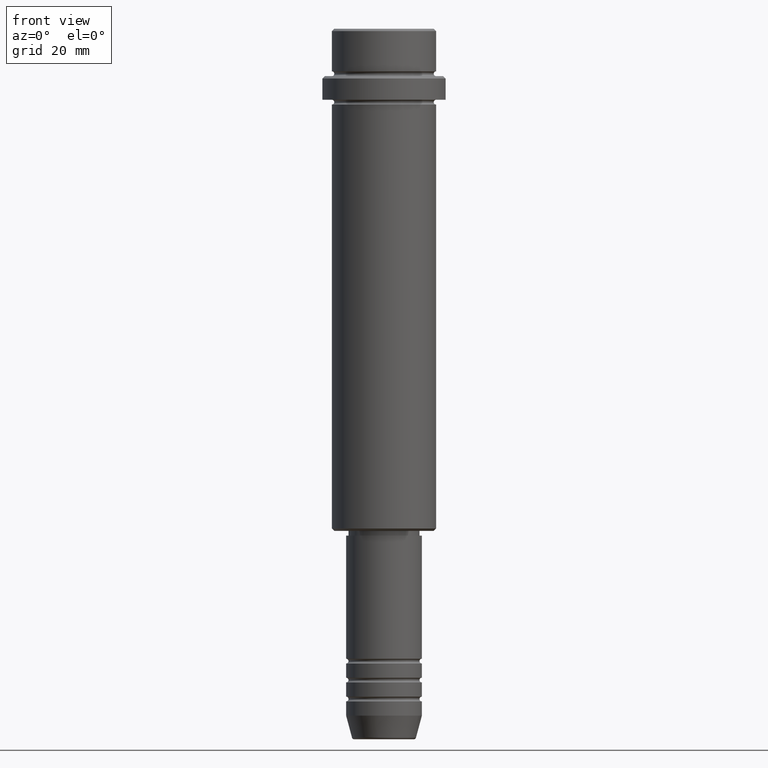
[diagram: clean part render]
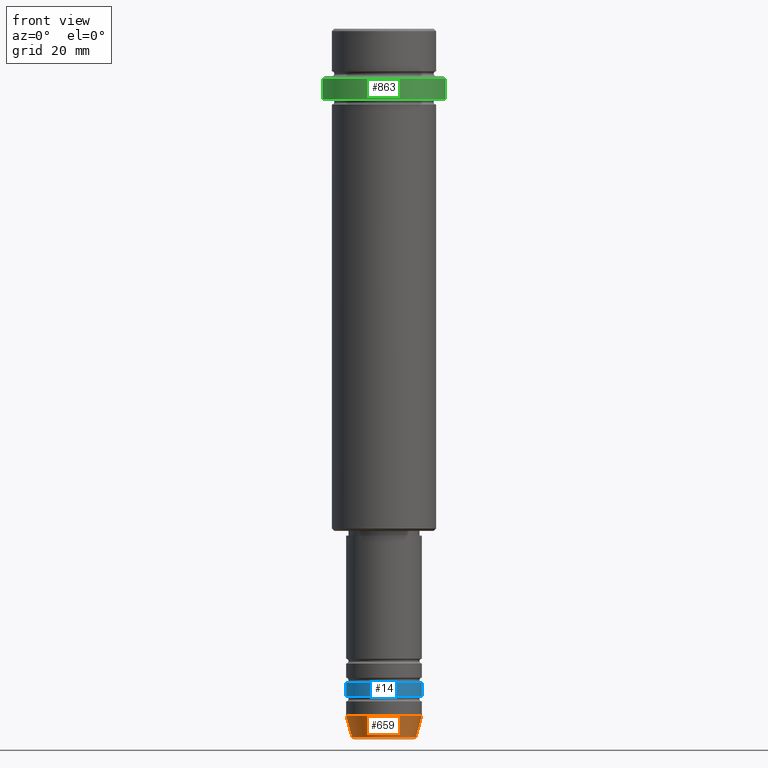
[diagram: same view with three faces highlighted in distinct colors, each labeled with its STEP entity id]
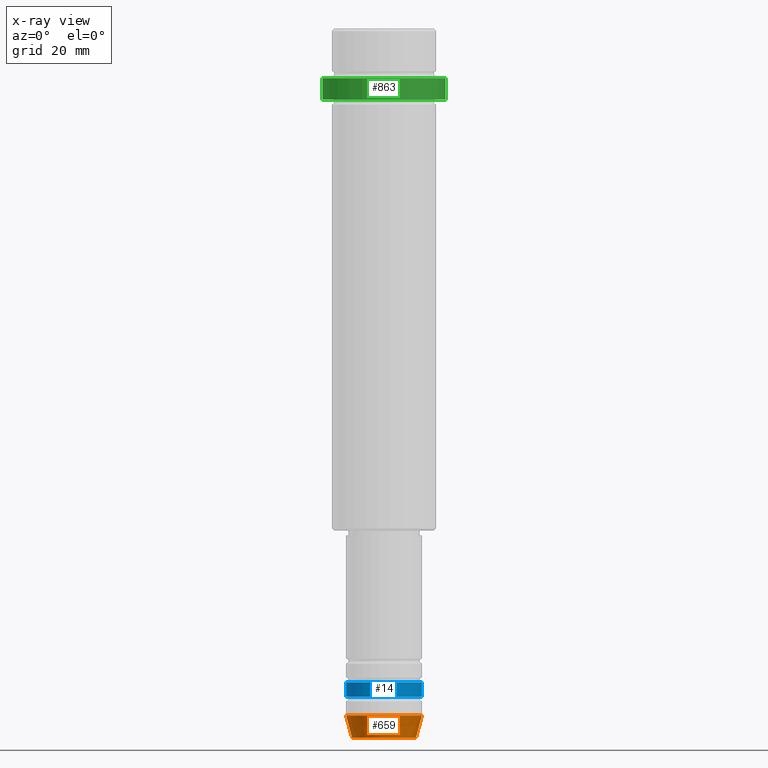
[diagram: x-ray of the same camera — body ghosted, the three highlighted faces saturated]
A machine part, front view with three faces highlighted in distinct colors.
The next image is the same camera in x-ray (body ghosted, the three faces saturated) — at least one of them is partly hidden behind the body in this view.
Their STEP definitions:

[orange] entity #659 — the highlighted conical surface has half-angle 15 deg.
#2 = CARTESIAN_POINT ( 'NONE',  ( 6.759553456999433330, 0.000000000000000000, -149.6294095225512706 ) ) ;
#33 = CARTESIAN_POINT ( 'NONE',  ( 8.000000000000000000, 0.000000000000000000, -145.0000000000000284 ) ) ;
#34 = EDGE_CURVE ( 'NONE', #1144, #665, #1338, .T. ) ;
#46 = CONICAL_SURFACE ( 'NONE', #435, 8.000000000000000000, 0.2617993877991500740 ) ;
#52 = DIRECTION ( 'NONE',  ( -0.000000000000000000, -0.000000000000000000, 1.000000000000000000 ) ) ;
#59 = EDGE_CURVE ( 'NONE', #490, #152, #291, .T. ) ;
#70 = CARTESIAN_POINT ( 'NONE',  ( 0.000000000000000000, 0.000000000000000000, -149.6294095225512706 ) ) ;
#110 = ORIENTED_EDGE ( 'NONE', *, *, #59, .T. ) ;
#137 = FACE_OUTER_BOUND ( 'NONE', #368, .T. ) ;
#152 = VERTEX_POINT ( 'NONE', #2 ) ;
#154 = AXIS2_PLACEMENT_3D ( 'NONE', #70, #930, #800 ) ;
#200 = VECTOR ( 'NONE', #1218, 1000.000000000000000 ) ;
#263 = DIRECTION ( 'NONE',  ( 1.000000000000000000, 0.000000000000000000, 0.000000000000000000 ) ) ;
#291 = CIRCLE ( 'NONE', #154, 6.759553456999433330 ) ;
#295 = CARTESIAN_POINT ( 'NONE',  ( -8.000000000000000000, 9.797174393178825657E-16, -145.0000000000000284 ) ) ;
#368 = EDGE_LOOP ( 'NONE', ( #1075, #110, #537, #427 ) ) ;
#378 = DIRECTION ( 'NONE',  ( 1.000000000000000000, 0.000000000000000000, 0.000000000000000000 ) ) ;
#388 = AXIS2_PLACEMENT_3D ( 'NONE', #1370, #1260, #378 ) ;
#427 = ORIENTED_EDGE ( 'NONE', *, *, #34, .F. ) ;
#435 = AXIS2_PLACEMENT_3D ( 'NONE', #1227, #52, #263 ) ;
#469 = LINE ( 'NONE', #767, #827 ) ;
#490 = VERTEX_POINT ( 'NONE', #1184 ) ;
#537 = ORIENTED_EDGE ( 'NONE', *, *, #1386, .T. ) ;
#659 = ADVANCED_FACE ( 'NONE', ( #137 ), #46, .T. ) ;
#665 = VERTEX_POINT ( 'NONE', #1373 ) ;
#767 = CARTESIAN_POINT ( 'NONE',  ( -8.000000000000000000, 9.797174393178825657E-16, -145.0000000000000284 ) ) ;
#776 = LINE ( 'NONE', #33, #200 ) ;
#800 = DIRECTION ( 'NONE',  ( 1.000000000000000000, 0.000000000000000000, 0.000000000000000000 ) ) ;
#827 = VECTOR ( 'NONE', #1210, 1000.000000000000000 ) ;
#930 = DIRECTION ( 'NONE',  ( -0.000000000000000000, -0.000000000000000000, 1.000000000000000000 ) ) ;
#969 = EDGE_CURVE ( 'NONE', #490, #1144, #469, .T. ) ;
#1075 = ORIENTED_EDGE ( 'NONE', *, *, #969, .F. ) ;
#1144 = VERTEX_POINT ( 'NONE', #295 ) ;
#1184 = CARTESIAN_POINT ( 'NONE',  ( -6.759553456999433330, 9.037619948979304241E-16, -149.6294095225512706 ) ) ;
#1210 = DIRECTION ( 'NONE',  ( -0.2588190451025213501, 3.169619151431772337E-17, 0.9659258262890680902 ) ) ;
#1218 = DIRECTION ( 'NONE',  ( 0.2588190451025213501, 0.000000000000000000, 0.9659258262890680902 ) ) ;
#1227 = CARTESIAN_POINT ( 'NONE',  ( 0.000000000000000000, 0.000000000000000000, -145.0000000000000284 ) ) ;
#1260 = DIRECTION ( 'NONE',  ( -0.000000000000000000, -0.000000000000000000, 1.000000000000000000 ) ) ;
#1338 = CIRCLE ( 'NONE', #388, 8.000000000000000000 ) ;
#1370 = CARTESIAN_POINT ( 'NONE',  ( 0.000000000000000000, 0.000000000000000000, -145.0000000000000284 ) ) ;
#1373 = CARTESIAN_POINT ( 'NONE',  ( 8.000000000000000000, 0.000000000000000000, -145.0000000000000284 ) ) ;
#1386 = EDGE_CURVE ( 'NONE', #152, #665, #776, .T. ) ;

[blue] entity #14 — the highlighted cylindrical surface (partial cylindrical patch) has radius 8 mm, axis along (-0, -0, 1).
#4 = DIRECTION ( 'NONE',  ( 1.000000000000000000, 0.000000000000000000, 0.000000000000000000 ) ) ;
#14 = ADVANCED_FACE ( 'NONE', ( #509 ), #1023, .T. ) ;
#27 = EDGE_LOOP ( 'NONE', ( #232, #386, #1138, #1348 ) ) ;
#60 = CARTESIAN_POINT ( 'NONE',  ( 0.000000000000000000, 0.000000000000000000, -137.9999999999998863 ) ) ;
#74 = DIRECTION ( 'NONE',  ( -0.000000000000000000, -0.000000000000000000, 1.000000000000000000 ) ) ;
#83 = EDGE_CURVE ( 'NONE', #558, #448, #826, .T. ) ;
#131 = VECTOR ( 'NONE', #832, 1000.000000000000000 ) ;
#232 = ORIENTED_EDGE ( 'NONE', *, *, #83, .F. ) ;
#265 = DIRECTION ( 'NONE',  ( -0.000000000000000000, -0.000000000000000000, 1.000000000000000000 ) ) ;
#313 = DIRECTION ( 'NONE',  ( -0.000000000000000000, -0.000000000000000000, 1.000000000000000000 ) ) ;
#386 = ORIENTED_EDGE ( 'NONE', *, *, #786, .T. ) ;
#448 = VERTEX_POINT ( 'NONE', #845 ) ;
#461 = CARTESIAN_POINT ( 'NONE',  ( 8.000000000000000000, 0.000000000000000000, -140.9999999999999147 ) ) ;
#500 = LINE ( 'NONE', #1377, #131 ) ;
#501 = CIRCLE ( 'NONE', #1136, 8.000000000000000000 ) ;
#509 = FACE_OUTER_BOUND ( 'NONE', #27, .T. ) ;
#542 = CIRCLE ( 'NONE', #1247, 8.000000000000000000 ) ;
#558 = VERTEX_POINT ( 'NONE', #991 ) ;
#588 = CARTESIAN_POINT ( 'NONE',  ( -8.000000000000000000, 9.797174393178825657E-16, 0.000000000000000000 ) ) ;
#610 = CARTESIAN_POINT ( 'NONE',  ( 0.000000000000000000, 0.000000000000000000, 0.000000000000000000 ) ) ;
#712 = DIRECTION ( 'NONE',  ( -0.000000000000000000, -0.000000000000000000, 1.000000000000000000 ) ) ;
#736 = CARTESIAN_POINT ( 'NONE',  ( 0.000000000000000000, 0.000000000000000000, -140.9999999999999147 ) ) ;
#786 = EDGE_CURVE ( 'NONE', #558, #1400, #501, .T. ) ;
#826 = LINE ( 'NONE', #588, #1109 ) ;
#832 = DIRECTION ( 'NONE',  ( -0.000000000000000000, -0.000000000000000000, 1.000000000000000000 ) ) ;
#845 = CARTESIAN_POINT ( 'NONE',  ( -8.000000000000000000, 9.797174393178825657E-16, -137.9999999999998863 ) ) ;
#875 = AXIS2_PLACEMENT_3D ( 'NONE', #610, #74, #907 ) ;
#907 = DIRECTION ( 'NONE',  ( 1.000000000000000000, 0.000000000000000000, 0.000000000000000000 ) ) ;
#917 = DIRECTION ( 'NONE',  ( 1.000000000000000000, 0.000000000000000000, 0.000000000000000000 ) ) ;
#991 = CARTESIAN_POINT ( 'NONE',  ( -8.000000000000000000, 9.797174393178825657E-16, -140.9999999999999147 ) ) ;
#1023 = CYLINDRICAL_SURFACE ( 'NONE', #875, 8.000000000000000000 ) ;
#1109 = VECTOR ( 'NONE', #265, 1000.000000000000000 ) ;
#1112 = EDGE_CURVE ( 'NONE', #448, #1268, #542, .T. ) ;
#1136 = AXIS2_PLACEMENT_3D ( 'NONE', #736, #313, #4 ) ;
#1138 = ORIENTED_EDGE ( 'NONE', *, *, #1236, .T. ) ;
#1236 = EDGE_CURVE ( 'NONE', #1400, #1268, #500, .T. ) ;
#1247 = AXIS2_PLACEMENT_3D ( 'NONE', #60, #712, #917 ) ;
#1268 = VERTEX_POINT ( 'NONE', #1318 ) ;
#1318 = CARTESIAN_POINT ( 'NONE',  ( 8.000000000000000000, 0.000000000000000000, -137.9999999999998863 ) ) ;
#1348 = ORIENTED_EDGE ( 'NONE', *, *, #1112, .F. ) ;
#1377 = CARTESIAN_POINT ( 'NONE',  ( 8.000000000000000000, 0.000000000000000000, 0.000000000000000000 ) ) ;
#1400 = VERTEX_POINT ( 'NONE', #461 ) ;

[green] entity #863 — the highlighted cylindrical surface (partial cylindrical patch) has radius 13 mm, axis along (-0, -0, 1).
#84 = VECTOR ( 'NONE', #541, 1000.000000000000000 ) ;
#118 = CARTESIAN_POINT ( 'NONE',  ( 13.00000000000000000, 0.000000000000000000, -15.00000000000000178 ) ) ;
#120 = VERTEX_POINT ( 'NONE', #417 ) ;
#138 = EDGE_CURVE ( 'NONE', #249, #120, #1163, .T. ) ;
#160 = VERTEX_POINT ( 'NONE', #1307 ) ;
#173 = AXIS2_PLACEMENT_3D ( 'NONE', #309, #709, #1153 ) ;
#179 = CARTESIAN_POINT ( 'NONE',  ( -13.00000000000000000, 1.592040838891559095E-15, -15.00000000000000178 ) ) ;
#180 = CIRCLE ( 'NONE', #1017, 13.00000000000000000 ) ;
#249 = VERTEX_POINT ( 'NONE', #179 ) ;
#256 = CARTESIAN_POINT ( 'NONE',  ( 0.000000000000000000, 0.000000000000000000, -15.00000000000000178 ) ) ;
#309 = CARTESIAN_POINT ( 'NONE',  ( 0.000000000000000000, 0.000000000000000000, -10.49999999999999289 ) ) ;
#323 = DIRECTION ( 'NONE',  ( 1.000000000000000000, 0.000000000000000000, 0.000000000000000000 ) ) ;
#332 = CARTESIAN_POINT ( 'NONE',  ( 13.00000000000000000, 0.000000000000000000, 0.000000000000000000 ) ) ;
#417 = CARTESIAN_POINT ( 'NONE',  ( -13.00000000000000000, 1.592040838891559095E-15, -10.49999999999999289 ) ) ;
#426 = CYLINDRICAL_SURFACE ( 'NONE', #1319, 13.00000000000000000 ) ;
#436 = FACE_OUTER_BOUND ( 'NONE', #683, .T. ) ;
#541 = DIRECTION ( 'NONE',  ( -0.000000000000000000, -0.000000000000000000, 1.000000000000000000 ) ) ;
#546 = DIRECTION ( 'NONE',  ( -0.000000000000000000, -0.000000000000000000, 1.000000000000000000 ) ) ;
#565 = VECTOR ( 'NONE', #546, 1000.000000000000000 ) ;
#604 = VERTEX_POINT ( 'NONE', #118 ) ;
#623 = CARTESIAN_POINT ( 'NONE',  ( -13.00000000000000000, 1.592040838891559095E-15, 0.000000000000000000 ) ) ;
#683 = EDGE_LOOP ( 'NONE', ( #1189, #685, #841, #754 ) ) ;
#685 = ORIENTED_EDGE ( 'NONE', *, *, #692, .T. ) ;
#692 = EDGE_CURVE ( 'NONE', #249, #604, #180, .T. ) ;
#693 = DIRECTION ( 'NONE',  ( 1.000000000000000000, 0.000000000000000000, 0.000000000000000000 ) ) ;
#709 = DIRECTION ( 'NONE',  ( 0.000000000000000000, 0.000000000000000000, -1.000000000000000000 ) ) ;
#754 = ORIENTED_EDGE ( 'NONE', *, *, #1185, .T. ) ;
#758 = DIRECTION ( 'NONE',  ( -0.000000000000000000, -0.000000000000000000, 1.000000000000000000 ) ) ;
#841 = ORIENTED_EDGE ( 'NONE', *, *, #1281, .T. ) ;
#863 = ADVANCED_FACE ( 'NONE', ( #436 ), #426, .T. ) ;
#1017 = AXIS2_PLACEMENT_3D ( 'NONE', #256, #1241, #693 ) ;
#1106 = CIRCLE ( 'NONE', #173, 13.00000000000000000 ) ;
#1153 = DIRECTION ( 'NONE',  ( 1.000000000000000000, 0.000000000000000000, 0.000000000000000000 ) ) ;
#1163 = LINE ( 'NONE', #623, #565 ) ;
#1181 = LINE ( 'NONE', #332, #84 ) ;
#1185 = EDGE_CURVE ( 'NONE', #160, #120, #1106, .T. ) ;
#1189 = ORIENTED_EDGE ( 'NONE', *, *, #138, .F. ) ;
#1241 = DIRECTION ( 'NONE',  ( -0.000000000000000000, -0.000000000000000000, 1.000000000000000000 ) ) ;
#1281 = EDGE_CURVE ( 'NONE', #604, #160, #1181, .T. ) ;
#1298 = CARTESIAN_POINT ( 'NONE',  ( 0.000000000000000000, 0.000000000000000000, 0.000000000000000000 ) ) ;
#1307 = CARTESIAN_POINT ( 'NONE',  ( 13.00000000000000000, 0.000000000000000000, -10.49999999999999289 ) ) ;
#1319 = AXIS2_PLACEMENT_3D ( 'NONE', #1298, #758, #323 ) ;